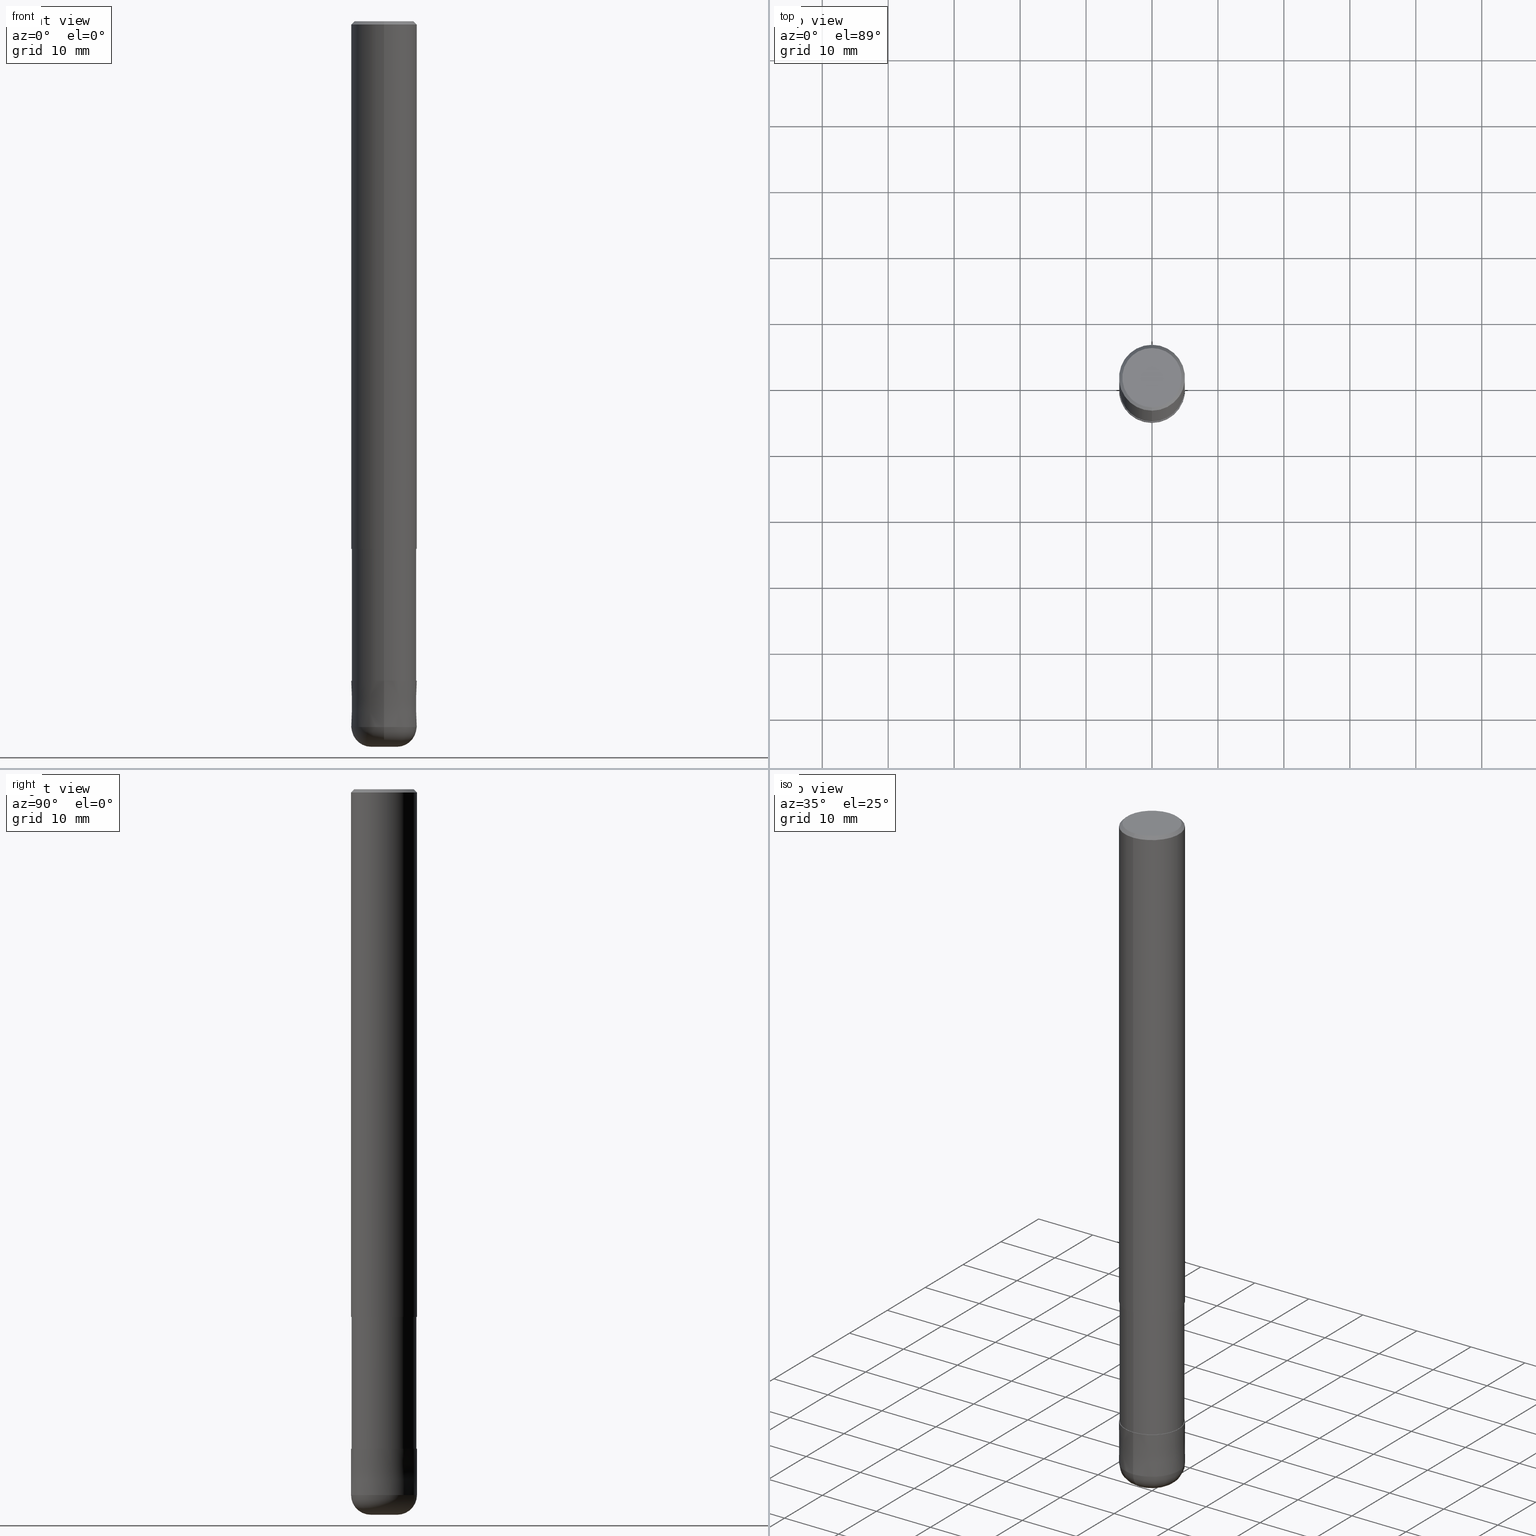
[diagram: canonical four-view strip — front | top / right | iso, engineering-drawing reading convention]
A machine part, canonical four-view strip (front | top / right | iso — engineering-drawing reading convention). The complete STEP part file that produces these views, byte-faithful:
ISO-10303-21;
HEADER;
FILE_DESCRIPTION(('no description'),'unknown implementation level');
FILE_NAME('HRRS4100-30-30-Huellk.stp','  ',('CIMSOURCE GmbH'),('CADClick - KiM GmbH - www.kimweb.de'),'unknown preprocess','ACIS','unknown authorization');
FILE_SCHEMA(('automotive_design'));
ENDSEC;
DATA;
#1=MECHANICAL_DESIGN_GEOMETRIC_PRESENTATION_REPRESENTATION(' ',(#14,#15,#16,#17,#18,#19,#20,#21,#22,#23,#24,#25,#26,#27,#28,#29,#30,#31,#32,#33,#34,#35,#36,#37,#38,#39,#40,#41,#42,#43,#44,#45,#46,#47,#48,#49,#50,#51,#52,#53,#54,#55,#56,#57,#58,#59,#60,#61,#62,#63,#64,#65,#66,#67,#68,#69,#70,#71,#72),#10);
#2=PRODUCT_DEFINITION_CONTEXT('',#73,'design');
#3=APPLICATION_PROTOCOL_DEFINITION('INTERNATIONAL STANDARD','automotive_design',1994,#73);
#4=PRODUCT_CATEGORY_RELATIONSHIP('NONE','NONE',#74,#75);
#5=SHAPE_DEFINITION_REPRESENTATION(#76,#77);
#6=PRODUCT_DEFINITION_CONTEXT('',#78,'design');
#7=APPLICATION_PROTOCOL_DEFINITION('INTERNATIONAL STANDARD','automotive_design',1994,#78);
#8=PRODUCT_CATEGORY_RELATIONSHIP('NONE','NONE',#79,#80);
#9=SHAPE_DEFINITION_REPRESENTATION(#81,#82);
#10= (GEOMETRIC_REPRESENTATION_CONTEXT(3)GLOBAL_UNCERTAINTY_ASSIGNED_CONTEXT((#85))GLOBAL_UNIT_ASSIGNED_CONTEXT((#87,#88,#89))REPRESENTATION_CONTEXT('NONE','WORKSPACE'));
#14=STYLED_ITEM('',(#91),#92);
#15=STYLED_ITEM('',(#93),#94);
#16=STYLED_ITEM('',(#95),#96);
#17=STYLED_ITEM('',(#97),#98);
#18=STYLED_ITEM('',(#99),#100);
#19=STYLED_ITEM('',(#101),#102);
#20=STYLED_ITEM('',(#103),#104);
#21=STYLED_ITEM('',(#105),#106);
#22=STYLED_ITEM('',(#107),#108);
#23=STYLED_ITEM('',(#109),#110);
#24=STYLED_ITEM('',(#111),#112);
#25=STYLED_ITEM('',(#113),#114);
#26=STYLED_ITEM('',(#115),#116);
#27=STYLED_ITEM('',(#117),#118);
#28=STYLED_ITEM('',(#119),#120);
#29=STYLED_ITEM('',(#121),#122);
#30=STYLED_ITEM('',(#123),#124);
#31=STYLED_ITEM('',(#125),#126);
#32=STYLED_ITEM('',(#127),#128);
#33=STYLED_ITEM('',(#129),#130);
#34=STYLED_ITEM('',(#131),#132);
#35=STYLED_ITEM('',(#133),#134);
#36=STYLED_ITEM('',(#135),#136);
#37=STYLED_ITEM('',(#137),#138);
#38=STYLED_ITEM('',(#139),#140);
#39=STYLED_ITEM('',(#141),#142);
#40=STYLED_ITEM('',(#143),#144);
#41=STYLED_ITEM('',(#145),#146);
#42=STYLED_ITEM('',(#147),#148);
#43=STYLED_ITEM('',(#149),#150);
#44=STYLED_ITEM('',(#151),#152);
#45=STYLED_ITEM('',(#153),#154);
#46=STYLED_ITEM('',(#155),#156);
#47=STYLED_ITEM('',(#157),#158);
#48=STYLED_ITEM('',(#159),#160);
#49=STYLED_ITEM('',(#161),#162);
#50=STYLED_ITEM('',(#163),#164);
#51=STYLED_ITEM('',(#165),#166);
#52=STYLED_ITEM('',(#167),#168);
#53=STYLED_ITEM('',(#169),#170);
#54=STYLED_ITEM('',(#171),#172);
#55=STYLED_ITEM('',(#173),#174);
#56=STYLED_ITEM('',(#175),#176);
#57=STYLED_ITEM('',(#177),#178);
#58=STYLED_ITEM('',(#179),#180);
#59=STYLED_ITEM('',(#181),#182);
#60=STYLED_ITEM('',(#183),#184);
#61=STYLED_ITEM('',(#185),#186);
#62=STYLED_ITEM('',(#187),#188);
#63=STYLED_ITEM('',(#189),#190);
#64=STYLED_ITEM('',(#191),#192);
#65=STYLED_ITEM('',(#193),#194);
#66=STYLED_ITEM('',(#195),#196);
#67=STYLED_ITEM('',(#197),#198);
#68=STYLED_ITEM('',(#199),#200);
#69=STYLED_ITEM('',(#201),#202);
#70=STYLED_ITEM('',(#203),#204);
#71=STYLED_ITEM('',(#205),#206);
#72=STYLED_ITEM('',(#207),#208);
#73=APPLICATION_CONTEXT(' ');
#74=PRODUCT_CATEGORY('part','NONE');
#75=PRODUCT_RELATED_PRODUCT_CATEGORY('detail',' ',(#209));
#76=PRODUCT_DEFINITION_SHAPE('NONE','NONE',#210);
#77=ADVANCED_BREP_SHAPE_REPRESENTATION('1',(#102,#211),#10);
#78=APPLICATION_CONTEXT(' ');
#79=PRODUCT_CATEGORY('part','NONE');
#80=PRODUCT_RELATED_PRODUCT_CATEGORY('detail',' ',(#212));
#81=PRODUCT_DEFINITION_SHAPE('NONE','NONE',#213);
#82=ADVANCED_BREP_SHAPE_REPRESENTATION('2',(#108,#214),#10);
#85=UNCERTAINTY_MEASURE_WITH_UNIT(LENGTH_MEASURE(1.0E-006),#87,'','');
#87= (CONVERSION_BASED_UNIT('MILLIMETRE',#217)LENGTH_UNIT()NAMED_UNIT(#220));
#88= (NAMED_UNIT(#222)PLANE_ANGLE_UNIT()SI_UNIT($,.RADIAN.));
#89= (NAMED_UNIT(#222)SOLID_ANGLE_UNIT()SI_UNIT($,.STERADIAN.));
#91=PRESENTATION_STYLE_ASSIGNMENT((#228));
#92=EDGE_CURVE('',#130,#112,#229,.T.);
#93=PRESENTATION_STYLE_ASSIGNMENT((#230));
#94=EDGE_CURVE('',#200,#112,#231,.T.);
#95=PRESENTATION_STYLE_ASSIGNMENT((#232));
#96=ADVANCED_FACE('',(#233),#234,.T.);
#97=PRESENTATION_STYLE_ASSIGNMENT((#235));
#98=VERTEX_POINT('',#236);
#99=PRESENTATION_STYLE_ASSIGNMENT((#237));
#100=EDGE_CURVE('',#98,#118,#238,.T.);
#101=PRESENTATION_STYLE_ASSIGNMENT((#239));
#102=MANIFOLD_SOLID_BREP('1',#240);
#103=PRESENTATION_STYLE_ASSIGNMENT((#241));
#104=VERTEX_POINT('',#242);
#105=PRESENTATION_STYLE_ASSIGNMENT((#243));
#106=VERTEX_POINT('',#244);
#107=PRESENTATION_STYLE_ASSIGNMENT((#245));
#108=MANIFOLD_SOLID_BREP('2',#246);
#109=PRESENTATION_STYLE_ASSIGNMENT((#247));
#110=EDGE_CURVE('',#200,#98,#248,.T.);
#111=PRESENTATION_STYLE_ASSIGNMENT((#249));
#112=VERTEX_POINT('',#250);
#113=PRESENTATION_STYLE_ASSIGNMENT((#251));
#114=ADVANCED_FACE('',(#252),#253,.T.);
#115=PRESENTATION_STYLE_ASSIGNMENT((#254));
#116=VERTEX_POINT('',#255);
#117=PRESENTATION_STYLE_ASSIGNMENT((#256));
#118=VERTEX_POINT('',#257);
#119=PRESENTATION_STYLE_ASSIGNMENT((#258));
#120=VERTEX_POINT('',#259);
#121=PRESENTATION_STYLE_ASSIGNMENT((#260));
#122=EDGE_CURVE('',#98,#130,#261,.T.);
#123=PRESENTATION_STYLE_ASSIGNMENT((#262));
#124=ADVANCED_FACE('',(#263),#264,.T.);
#125=PRESENTATION_STYLE_ASSIGNMENT((#265));
#126=VERTEX_POINT('',#266);
#127=PRESENTATION_STYLE_ASSIGNMENT((#267));
#128=EDGE_CURVE('',#104,#192,#268,.T.);
#129=PRESENTATION_STYLE_ASSIGNMENT((#269));
#130=VERTEX_POINT('',#270);
#131=PRESENTATION_STYLE_ASSIGNMENT((#271));
#132=ADVANCED_FACE('',(#272),#273,.T.);
#133=PRESENTATION_STYLE_ASSIGNMENT((#274));
#134=EDGE_CURVE('',#188,#130,#275,.T.);
#135=PRESENTATION_STYLE_ASSIGNMENT((#276));
#136=ADVANCED_FACE('',(#277),#278,.T.);
#137=PRESENTATION_STYLE_ASSIGNMENT((#279));
#138=EDGE_CURVE('',#104,#158,#280,.T.);
#139=PRESENTATION_STYLE_ASSIGNMENT((#281));
#140=EDGE_CURVE('',#162,#116,#282,.T.);
#141=PRESENTATION_STYLE_ASSIGNMENT((#283));
#142=ADVANCED_FACE('',(#284),#285,.T.);
#143=PRESENTATION_STYLE_ASSIGNMENT((#286));
#144=EDGE_CURVE('',#130,#98,#287,.T.);
#145=PRESENTATION_STYLE_ASSIGNMENT((#288));
#146=EDGE_CURVE('',#120,#126,#289,.T.);
#147=PRESENTATION_STYLE_ASSIGNMENT((#290));
#148=EDGE_CURVE('',#162,#126,#291,.T.);
#149=PRESENTATION_STYLE_ASSIGNMENT((#292));
#150=EDGE_CURVE('',#118,#188,#293,.T.);
#151=PRESENTATION_STYLE_ASSIGNMENT((#294));
#152=VERTEX_POINT('',#295);
#153=PRESENTATION_STYLE_ASSIGNMENT((#296));
#154=EDGE_CURVE('',#156,#158,#297,.T.);
#155=PRESENTATION_STYLE_ASSIGNMENT((#298));
#156=VERTEX_POINT('',#299);
#157=PRESENTATION_STYLE_ASSIGNMENT((#300));
#158=VERTEX_POINT('',#301);
#159=PRESENTATION_STYLE_ASSIGNMENT((#302));
#160=ADVANCED_FACE('',(#303),#304,.T.);
#161=PRESENTATION_STYLE_ASSIGNMENT((#305));
#162=VERTEX_POINT('',#306);
#163=PRESENTATION_STYLE_ASSIGNMENT((#307));
#164=EDGE_CURVE('',#116,#120,#308,.T.);
#165=PRESENTATION_STYLE_ASSIGNMENT((#309));
#166=EDGE_CURVE('',#112,#200,#310,.T.);
#167=PRESENTATION_STYLE_ASSIGNMENT((#311));
#168=EDGE_CURVE('',#192,#156,#312,.T.);
#169=PRESENTATION_STYLE_ASSIGNMENT((#313));
#170=ADVANCED_FACE('',(#314),#315,.T.);
#171=PRESENTATION_STYLE_ASSIGNMENT((#316));
#172=ADVANCED_FACE('',(#317),#318,.T.);
#173=PRESENTATION_STYLE_ASSIGNMENT((#319));
#174=EDGE_CURVE('',#120,#106,#320,.T.);
#175=PRESENTATION_STYLE_ASSIGNMENT((#321));
#176=ADVANCED_FACE('',(#322),#323,.T.);
#177=PRESENTATION_STYLE_ASSIGNMENT((#324));
#178=ADVANCED_FACE('',(#325,#326),#327,.T.);
#179=PRESENTATION_STYLE_ASSIGNMENT((#328));
#180=EDGE_CURVE('',#126,#162,#329,.T.);
#181=PRESENTATION_STYLE_ASSIGNMENT((#330));
#182=ADVANCED_FACE('',(#331),#332,.T.);
#183=PRESENTATION_STYLE_ASSIGNMENT((#333));
#184=EDGE_CURVE('',#158,#104,#334,.T.);
#185=PRESENTATION_STYLE_ASSIGNMENT((#335));
#186=EDGE_CURVE('',#152,#116,#336,.T.);
#187=PRESENTATION_STYLE_ASSIGNMENT((#337));
#188=VERTEX_POINT('',#338);
#189=PRESENTATION_STYLE_ASSIGNMENT((#339));
#190=EDGE_CURVE('',#106,#152,#340,.T.);
#191=PRESENTATION_STYLE_ASSIGNMENT((#341));
#192=VERTEX_POINT('',#342);
#193=PRESENTATION_STYLE_ASSIGNMENT((#343));
#194=EDGE_CURVE('',#156,#192,#344,.T.);
#195=PRESENTATION_STYLE_ASSIGNMENT((#345));
#196=ADVANCED_FACE('',(#346),#347,.T.);
#197=PRESENTATION_STYLE_ASSIGNMENT((#348));
#198=EDGE_CURVE('',#152,#106,#349,.T.);
#199=PRESENTATION_STYLE_ASSIGNMENT((#350));
#200=VERTEX_POINT('',#351);
#201=PRESENTATION_STYLE_ASSIGNMENT((#352));
#202=EDGE_CURVE('',#120,#116,#353,.T.);
#203=PRESENTATION_STYLE_ASSIGNMENT((#354));
#204=EDGE_CURVE('',#188,#118,#355,.T.);
#205=PRESENTATION_STYLE_ASSIGNMENT((#356));
#206=ADVANCED_FACE('',(#357),#358,.T.);
#207=PRESENTATION_STYLE_ASSIGNMENT((#359));
#208=ADVANCED_FACE('',(#360),#361,.T.);
#209=PRODUCT('1','1','PART-1-DESC',(#362));
#210=PRODUCT_DEFINITION('NONE','NONE',#363,#2);
#211=AXIS2_PLACEMENT_3D('',#364,#365,#366);
#212=PRODUCT('2','2','PART-2-DESC',(#367));
#213=PRODUCT_DEFINITION('NONE','NONE',#368,#6);
#214=AXIS2_PLACEMENT_3D('',#369,#370,#371);
#217=LENGTH_MEASURE_WITH_UNIT(LENGTH_MEASURE(1.0),#372);
#220=DIMENSIONAL_EXPONENTS(1.0,0.0,0.0,0.0,0.0,0.0,0.0);
#222=DIMENSIONAL_EXPONENTS(0.0,0.0,0.0,0.0,0.0,0.0,0.0);
#228=CURVE_STYLE('',#373,POSITIVE_LENGTH_MEASURE(1.0E-006),#374);
#229=LINE('',#375,#376);
#230=CURVE_STYLE('',#377,POSITIVE_LENGTH_MEASURE(1.0E-006),#378);
#231=CIRCLE('',#379,5.0);
#232=SURFACE_STYLE_USAGE(.BOTH.,#380);
#233=FACE_OUTER_BOUND('',#381,.T.);
#234=CYLINDRICAL_SURFACE('',#382,5.0);
#235=POINT_STYLE(' ',#383,POSITIVE_LENGTH_MEASURE(1.0E-006),#384);
#236=CARTESIAN_POINT('',(6.12303176911189E-016,-5.0,-0.5));
#237=CURVE_STYLE('',#385,POSITIVE_LENGTH_MEASURE(1.0E-006),#386);
#238=LINE('',#387,#388);
#239=SURFACE_STYLE_USAGE(.BOTH.,#389);
#240=CLOSED_SHELL('',(#208,#96,#114,#178,#170,#124,#172,#182,#136));
#241=POINT_STYLE(' ',#390,POSITIVE_LENGTH_MEASURE(1.0E-006),#391);
#242=CARTESIAN_POINT('',(6.01275596695018E-016,-4.90995,-100.0));
#243=POINT_STYLE(' ',#392,POSITIVE_LENGTH_MEASURE(1.0E-006),#393);
#244=CARTESIAN_POINT('',(6.1229093084765E-016,-4.9999,-100.0));
#245=SURFACE_STYLE_USAGE(.BOTH.,#394);
#246=CLOSED_SHELL('',(#132,#196,#160,#142,#176,#206));
#247=CURVE_STYLE('',#395,POSITIVE_LENGTH_MEASURE(1.0E-006),#396);
#248=LINE('',#397,#398);
#249=POINT_STYLE(' ',#399,POSITIVE_LENGTH_MEASURE(1.0E-006),#400);
#250=CARTESIAN_POINT('',(0.0,5.0,-80.0));
#251=SURFACE_STYLE_USAGE(.BOTH.,#401);
#252=FACE_OUTER_BOUND('',#402,.T.);
#253=CONICAL_SURFACE('',#403,4.75,0.785398163397448);
#254=POINT_STYLE(' ',#404,POSITIVE_LENGTH_MEASURE(1.0E-006),#405);
#255=CARTESIAN_POINT('',(0.0,5.0,-107.0));
#256=POINT_STYLE(' ',#406,POSITIVE_LENGTH_MEASURE(1.0E-006),#407);
#257=CARTESIAN_POINT('',(5.5107285922007E-016,-4.5,0.0));
#258=POINT_STYLE(' ',#408,POSITIVE_LENGTH_MEASURE(1.0E-006),#409);
#259=CARTESIAN_POINT('',(6.12303176911189E-016,-5.0,-107.0));
#260=CURVE_STYLE('',#410,POSITIVE_LENGTH_MEASURE(1.0E-006),#411);
#261=CIRCLE('',#412,5.0);
#262=SURFACE_STYLE_USAGE(.BOTH.,#413);
#263=FACE_OUTER_BOUND('',#414,.T.);
#264=CONICAL_SURFACE('',#415,4.75,0.785398163397448);
#265=POINT_STYLE(' ',#416,POSITIVE_LENGTH_MEASURE(1.0E-006),#417);
#266=CARTESIAN_POINT('',(2.44921270764476E-016,-2.0,-110.0));
#267=CURVE_STYLE('',#418,POSITIVE_LENGTH_MEASURE(1.0E-006),#419);
#268=LINE('',#420,#421);
#269=POINT_STYLE(' ',#422,POSITIVE_LENGTH_MEASURE(1.0E-006),#423);
#270=CARTESIAN_POINT('',(0.0,5.0,-0.5));
#271=SURFACE_STYLE_USAGE(.BOTH.,#424);
#272=FACE_OUTER_BOUND('',#425,.T.);
#273=TOROIDAL_SURFACE('',#426,2.0,3.0);
#274=CURVE_STYLE('',#427,POSITIVE_LENGTH_MEASURE(1.0E-006),#428);
#275=LINE('',#429,#430);
#276=SURFACE_STYLE_USAGE(.BOTH.,#431);
#277=FACE_OUTER_BOUND('',#432,.T.);
#278=PLANE('',#433);
#279=CURVE_STYLE('',#434,POSITIVE_LENGTH_MEASURE(1.0E-006),#435);
#280=CIRCLE('',#436,4.90995);
#281=CURVE_STYLE('',#437,POSITIVE_LENGTH_MEASURE(1.0E-006),#438);
#282=CIRCLE('',#439,3.0);
#283=SURFACE_STYLE_USAGE(.BOTH.,#440);
#284=FACE_OUTER_BOUND('',#441,.T.);
#285=CONICAL_SURFACE('',#442,4.99995,1.42857142847092E-005);
#286=CURVE_STYLE('',#443,POSITIVE_LENGTH_MEASURE(1.0E-006),#444);
#287=CIRCLE('',#445,5.0);
#288=CURVE_STYLE('',#446,POSITIVE_LENGTH_MEASURE(1.0E-006),#447);
#289=CIRCLE('',#448,3.0);
#290=CURVE_STYLE('',#449,POSITIVE_LENGTH_MEASURE(1.0E-006),#450);
#291=CIRCLE('',#451,2.0);
#292=CURVE_STYLE('',#452,POSITIVE_LENGTH_MEASURE(1.0E-006),#453);
#293=CIRCLE('',#454,4.5);
#294=POINT_STYLE(' ',#455,POSITIVE_LENGTH_MEASURE(1.0E-006),#456);
#295=CARTESIAN_POINT('',(0.0,4.9999,-100.0));
#296=CURVE_STYLE('',#457,POSITIVE_LENGTH_MEASURE(1.0E-006),#458);
#297=LINE('',#459,#460);
#298=POINT_STYLE(' ',#461,POSITIVE_LENGTH_MEASURE(1.0E-006),#462);
#299=CARTESIAN_POINT('',(0.0,4.90995,-80.0));
#300=POINT_STYLE(' ',#463,POSITIVE_LENGTH_MEASURE(1.0E-006),#464);
#301=CARTESIAN_POINT('',(0.0,4.90995,-100.0));
#302=SURFACE_STYLE_USAGE(.BOTH.,#465);
#303=FACE_OUTER_BOUND('',#466,.T.);
#304=PLANE('',#467);
#305=POINT_STYLE(' ',#468,POSITIVE_LENGTH_MEASURE(1.0E-006),#469);
#306=CARTESIAN_POINT('',(0.0,2.0,-110.0));
#307=CURVE_STYLE('',#470,POSITIVE_LENGTH_MEASURE(1.0E-006),#471);
#308=CIRCLE('',#472,5.0);
#309=CURVE_STYLE('',#473,POSITIVE_LENGTH_MEASURE(1.0E-006),#474);
#310=CIRCLE('',#475,5.0);
#311=CURVE_STYLE('',#476,POSITIVE_LENGTH_MEASURE(1.0E-006),#477);
#312=CIRCLE('',#478,4.90995);
#313=SURFACE_STYLE_USAGE(.BOTH.,#479);
#314=FACE_OUTER_BOUND('',#480,.T.);
#315=PLANE('',#481);
#316=SURFACE_STYLE_USAGE(.BOTH.,#482);
#317=FACE_OUTER_BOUND('',#483,.T.);
#318=CYLINDRICAL_SURFACE('',#484,5.0);
#319=CURVE_STYLE('',#485,POSITIVE_LENGTH_MEASURE(1.0E-006),#486);
#320=LINE('',#487,#488);
#321=SURFACE_STYLE_USAGE(.BOTH.,#489);
#322=FACE_OUTER_BOUND('',#490,.T.);
#323=TOROIDAL_SURFACE('',#491,2.0,3.0);
#324=SURFACE_STYLE_USAGE(.BOTH.,#492);
#325=FACE_OUTER_BOUND('',#493,.T.);
#326=FACE_BOUND('',#494,.T.);
#327=PLANE('',#495);
#328=CURVE_STYLE('',#496,POSITIVE_LENGTH_MEASURE(1.0E-006),#497);
#329=CIRCLE('',#498,2.0);
#330=SURFACE_STYLE_USAGE(.BOTH.,#499);
#331=FACE_OUTER_BOUND('',#500,.T.);
#332=CYLINDRICAL_SURFACE('',#501,4.90995);
#333=CURVE_STYLE('',#502,POSITIVE_LENGTH_MEASURE(1.0E-006),#503);
#334=CIRCLE('',#504,4.90995);
#335=CURVE_STYLE('',#505,POSITIVE_LENGTH_MEASURE(1.0E-006),#506);
#336=LINE('',#507,#508);
#337=POINT_STYLE(' ',#509,POSITIVE_LENGTH_MEASURE(1.0E-006),#510);
#338=CARTESIAN_POINT('',(0.0,4.5,0.0));
#339=CURVE_STYLE('',#511,POSITIVE_LENGTH_MEASURE(1.0E-006),#512);
#340=CIRCLE('',#513,4.9999);
#341=POINT_STYLE(' ',#514,POSITIVE_LENGTH_MEASURE(1.0E-006),#515);
#342=CARTESIAN_POINT('',(6.01275596695018E-016,-4.90995,-80.0));
#343=CURVE_STYLE('',#516,POSITIVE_LENGTH_MEASURE(1.0E-006),#517);
#344=CIRCLE('',#518,4.90995);
#345=SURFACE_STYLE_USAGE(.BOTH.,#519);
#346=FACE_OUTER_BOUND('',#520,.T.);
#347=CONICAL_SURFACE('',#521,4.99995,1.42857142847092E-005);
#348=CURVE_STYLE('',#522,POSITIVE_LENGTH_MEASURE(1.0E-006),#523);
#349=CIRCLE('',#524,4.9999);
#350=POINT_STYLE(' ',#525,POSITIVE_LENGTH_MEASURE(1.0E-006),#526);
#351=CARTESIAN_POINT('',(6.12303176911189E-016,-5.0,-80.0));
#352=CURVE_STYLE('',#527,POSITIVE_LENGTH_MEASURE(1.0E-006),#528);
#353=CIRCLE('',#529,5.0);
#354=CURVE_STYLE('',#530,POSITIVE_LENGTH_MEASURE(1.0E-006),#531);
#355=CIRCLE('',#532,4.5);
#356=SURFACE_STYLE_USAGE(.BOTH.,#533);
#357=FACE_OUTER_BOUND('',#534,.T.);
#358=PLANE('',#535);
#359=SURFACE_STYLE_USAGE(.BOTH.,#536);
#360=FACE_OUTER_BOUND('',#537,.T.);
#361=CYLINDRICAL_SURFACE('',#538,4.90995);
#362=PRODUCT_CONTEXT('',#73,'mechanical');
#363=PRODUCT_DEFINITION_FORMATION_WITH_SPECIFIED_SOURCE(' ','NONE',#209,.NOT_KNOWN.);
#364=CARTESIAN_POINT('',(0.0,0.0,0.0));
#365=DIRECTION('',(0.0,0.0,1.0));
#366=DIRECTION('',(1.0,0.0,0.0));
#367=PRODUCT_CONTEXT('',#78,'mechanical');
#368=PRODUCT_DEFINITION_FORMATION_WITH_SPECIFIED_SOURCE(' ','NONE',#212,.NOT_KNOWN.);
#369=CARTESIAN_POINT('',(0.0,0.0,0.0));
#370=DIRECTION('',(0.0,0.0,1.0));
#371=DIRECTION('',(1.0,0.0,0.0));
#372= (NAMED_UNIT(#220)LENGTH_UNIT()SI_UNIT(.MILLI.,.METRE.));
#373=DRAUGHTING_PRE_DEFINED_CURVE_FONT('continuous');
#374=COLOUR_RGB('',0.498039215803146,0.498039215803146,0.498039215803146);
#375=CARTESIAN_POINT('',(-6.12303176911189E-016,5.0,-40.25));
#376=VECTOR('',#540,1.0);
#377=DRAUGHTING_PRE_DEFINED_CURVE_FONT('continuous');
#378=COLOUR_RGB('',0.498039215803146,0.498039215803146,0.498039215803146);
#379=AXIS2_PLACEMENT_3D('',#541,#542,#543);
#380=SURFACE_SIDE_STYLE('',(#544));
#381=EDGE_LOOP('',(#545,#546,#547,#548));
#382=AXIS2_PLACEMENT_3D('',#549,#550,#551);
#383=PRE_DEFINED_MARKER('');
#384=COLOUR_RGB('',0.498039215803146,0.498039215803146,0.498039215803146);
#385=DRAUGHTING_PRE_DEFINED_CURVE_FONT('continuous');
#386=COLOUR_RGB('',0.498039215803146,0.498039215803146,0.498039215803146);
#387=CARTESIAN_POINT('',(5.81688018065629E-016,-4.75,-0.25));
#388=VECTOR('',#552,1.0);
#389=SURFACE_SIDE_STYLE('',(#553));
#390=PRE_DEFINED_MARKER('');
#391=COLOUR_RGB('',0.498039215803146,0.498039215803146,0.498039215803146);
#392=PRE_DEFINED_MARKER('');
#393=COLOUR_RGB('',0.800000011920929,0.800000011920929,0.800000011920929);
#394=SURFACE_SIDE_STYLE('',(#554));
#395=DRAUGHTING_PRE_DEFINED_CURVE_FONT('continuous');
#396=COLOUR_RGB('',0.498039215803146,0.498039215803146,0.498039215803146);
#397=CARTESIAN_POINT('',(6.12303176911189E-016,-5.0,-40.25));
#398=VECTOR('',#555,1.0);
#399=PRE_DEFINED_MARKER('');
#400=COLOUR_RGB('',0.498039215803146,0.498039215803146,0.498039215803146);
#401=SURFACE_SIDE_STYLE('',(#556));
#402=EDGE_LOOP('',(#557,#558,#559,#560));
#403=AXIS2_PLACEMENT_3D('',#561,#562,#563);
#404=PRE_DEFINED_MARKER('');
#405=COLOUR_RGB('',0.800000011920929,0.800000011920929,0.800000011920929);
#406=PRE_DEFINED_MARKER('');
#407=COLOUR_RGB('',0.498039215803146,0.498039215803146,0.498039215803146);
#408=PRE_DEFINED_MARKER('');
#409=COLOUR_RGB('',0.800000011920929,0.800000011920929,0.800000011920929);
#410=DRAUGHTING_PRE_DEFINED_CURVE_FONT('continuous');
#411=COLOUR_RGB('',0.498039215803146,0.498039215803146,0.498039215803146);
#412=AXIS2_PLACEMENT_3D('',#564,#565,#566);
#413=SURFACE_SIDE_STYLE('',(#567));
#414=EDGE_LOOP('',(#568,#569,#570,#571));
#415=AXIS2_PLACEMENT_3D('',#572,#573,#574);
#416=PRE_DEFINED_MARKER('');
#417=COLOUR_RGB('',0.800000011920929,0.800000011920929,0.800000011920929);
#418=DRAUGHTING_PRE_DEFINED_CURVE_FONT('continuous');
#419=COLOUR_RGB('',0.498039215803146,0.498039215803146,0.498039215803146);
#420=CARTESIAN_POINT('',(6.01275596695018E-016,-4.90995,-90.0));
#421=VECTOR('',#575,1.0);
#422=PRE_DEFINED_MARKER('');
#423=COLOUR_RGB('',0.498039215803146,0.498039215803146,0.498039215803146);
#424=SURFACE_SIDE_STYLE('',(#576));
#425=EDGE_LOOP('',(#577,#578,#579,#580));
#426=AXIS2_PLACEMENT_3D('',#581,#582,#583);
#427=DRAUGHTING_PRE_DEFINED_CURVE_FONT('continuous');
#428=COLOUR_RGB('',0.498039215803146,0.498039215803146,0.498039215803146);
#429=CARTESIAN_POINT('',(-5.81688018065629E-016,4.75,-0.25));
#430=VECTOR('',#584,1.0);
#431=SURFACE_SIDE_STYLE('',(#585));
#432=EDGE_LOOP('',(#586,#587));
#433=AXIS2_PLACEMENT_3D('',#588,#589,#590);
#434=DRAUGHTING_PRE_DEFINED_CURVE_FONT('continuous');
#435=COLOUR_RGB('',0.498039215803146,0.498039215803146,0.498039215803146);
#436=AXIS2_PLACEMENT_3D('',#591,#592,#593);
#437=DRAUGHTING_PRE_DEFINED_CURVE_FONT('continuous');
#438=COLOUR_RGB('',0.800000011920929,0.800000011920929,0.800000011920929);
#439=AXIS2_PLACEMENT_3D('',#594,#595,#596);
#440=SURFACE_SIDE_STYLE('',(#597));
#441=EDGE_LOOP('',(#598,#599,#600,#601));
#442=AXIS2_PLACEMENT_3D('',#602,#603,#604);
#443=DRAUGHTING_PRE_DEFINED_CURVE_FONT('continuous');
#444=COLOUR_RGB('',0.498039215803146,0.498039215803146,0.498039215803146);
#445=AXIS2_PLACEMENT_3D('',#605,#606,#607);
#446=DRAUGHTING_PRE_DEFINED_CURVE_FONT('continuous');
#447=COLOUR_RGB('',0.800000011920929,0.800000011920929,0.800000011920929);
#448=AXIS2_PLACEMENT_3D('',#608,#609,#610);
#449=DRAUGHTING_PRE_DEFINED_CURVE_FONT('continuous');
#450=COLOUR_RGB('',0.800000011920929,0.800000011920929,0.800000011920929);
#451=AXIS2_PLACEMENT_3D('',#611,#612,#613);
#452=DRAUGHTING_PRE_DEFINED_CURVE_FONT('continuous');
#453=COLOUR_RGB('',0.498039215803146,0.498039215803146,0.498039215803146);
#454=AXIS2_PLACEMENT_3D('',#614,#615,#616);
#455=PRE_DEFINED_MARKER('');
#456=COLOUR_RGB('',0.800000011920929,0.800000011920929,0.800000011920929);
#457=DRAUGHTING_PRE_DEFINED_CURVE_FONT('continuous');
#458=COLOUR_RGB('',0.498039215803146,0.498039215803146,0.498039215803146);
#459=CARTESIAN_POINT('',(-6.01275596695018E-016,4.90995,-90.0));
#460=VECTOR('',#617,1.0);
#461=PRE_DEFINED_MARKER('');
#462=COLOUR_RGB('',0.498039215803146,0.498039215803146,0.498039215803146);
#463=PRE_DEFINED_MARKER('');
#464=COLOUR_RGB('',0.498039215803146,0.498039215803146,0.498039215803146);
#465=SURFACE_SIDE_STYLE('',(#618));
#466=EDGE_LOOP('',(#619,#620));
#467=AXIS2_PLACEMENT_3D('',#621,#622,#623);
#468=PRE_DEFINED_MARKER('');
#469=COLOUR_RGB('',0.800000011920929,0.800000011920929,0.800000011920929);
#470=DRAUGHTING_PRE_DEFINED_CURVE_FONT('continuous');
#471=COLOUR_RGB('',0.800000011920929,0.800000011920929,0.800000011920929);
#472=AXIS2_PLACEMENT_3D('',#624,#625,#626);
#473=DRAUGHTING_PRE_DEFINED_CURVE_FONT('continuous');
#474=COLOUR_RGB('',0.498039215803146,0.498039215803146,0.498039215803146);
#475=AXIS2_PLACEMENT_3D('',#627,#628,#629);
#476=DRAUGHTING_PRE_DEFINED_CURVE_FONT('continuous');
#477=COLOUR_RGB('',0.498039215803146,0.498039215803146,0.498039215803146);
#478=AXIS2_PLACEMENT_3D('',#630,#631,#632);
#479=SURFACE_SIDE_STYLE('',(#633));
#480=EDGE_LOOP('',(#634,#635));
#481=AXIS2_PLACEMENT_3D('',#636,#637,#638);
#482=SURFACE_SIDE_STYLE('',(#639));
#483=EDGE_LOOP('',(#640,#641,#642,#643));
#484=AXIS2_PLACEMENT_3D('',#644,#645,#646);
#485=DRAUGHTING_PRE_DEFINED_CURVE_FONT('continuous');
#486=COLOUR_RGB('',0.800000011920929,0.800000011920929,0.800000011920929);
#487=CARTESIAN_POINT('',(6.12297053879419E-016,-4.99995,-103.5));
#488=VECTOR('',#647,1.0);
#489=SURFACE_SIDE_STYLE('',(#648));
#490=EDGE_LOOP('',(#649,#650,#651,#652));
#491=AXIS2_PLACEMENT_3D('',#653,#654,#655);
#492=SURFACE_SIDE_STYLE('',(#656));
#493=EDGE_LOOP('',(#657,#658));
#494=EDGE_LOOP('',(#659,#660));
#495=AXIS2_PLACEMENT_3D('',#661,#662,#663);
#496=DRAUGHTING_PRE_DEFINED_CURVE_FONT('continuous');
#497=COLOUR_RGB('',0.800000011920929,0.800000011920929,0.800000011920929);
#498=AXIS2_PLACEMENT_3D('',#664,#665,#666);
#499=SURFACE_SIDE_STYLE('',(#667));
#500=EDGE_LOOP('',(#668,#669,#670,#671));
#501=AXIS2_PLACEMENT_3D('',#672,#673,#674);
#502=DRAUGHTING_PRE_DEFINED_CURVE_FONT('continuous');
#503=COLOUR_RGB('',0.498039215803146,0.498039215803146,0.498039215803146);
#504=AXIS2_PLACEMENT_3D('',#675,#676,#677);
#505=DRAUGHTING_PRE_DEFINED_CURVE_FONT('continuous');
#506=COLOUR_RGB('',0.800000011920929,0.800000011920929,0.800000011920929);
#507=CARTESIAN_POINT('',(-6.1229705387942E-016,4.99995,-103.5));
#508=VECTOR('',#678,1.0);
#509=PRE_DEFINED_MARKER('');
#510=COLOUR_RGB('',0.498039215803146,0.498039215803146,0.498039215803146);
#511=DRAUGHTING_PRE_DEFINED_CURVE_FONT('continuous');
#512=COLOUR_RGB('',0.800000011920929,0.800000011920929,0.800000011920929);
#513=AXIS2_PLACEMENT_3D('',#679,#680,#681);
#514=PRE_DEFINED_MARKER('');
#515=COLOUR_RGB('',0.498039215803146,0.498039215803146,0.498039215803146);
#516=DRAUGHTING_PRE_DEFINED_CURVE_FONT('continuous');
#517=COLOUR_RGB('',0.498039215803146,0.498039215803146,0.498039215803146);
#518=AXIS2_PLACEMENT_3D('',#682,#683,#684);
#519=SURFACE_SIDE_STYLE('',(#685));
#520=EDGE_LOOP('',(#686,#687,#688,#689));
#521=AXIS2_PLACEMENT_3D('',#690,#691,#692);
#522=DRAUGHTING_PRE_DEFINED_CURVE_FONT('continuous');
#523=COLOUR_RGB('',0.800000011920929,0.800000011920929,0.800000011920929);
#524=AXIS2_PLACEMENT_3D('',#693,#694,#695);
#525=PRE_DEFINED_MARKER('');
#526=COLOUR_RGB('',0.498039215803146,0.498039215803146,0.498039215803146);
#527=DRAUGHTING_PRE_DEFINED_CURVE_FONT('continuous');
#528=COLOUR_RGB('',0.800000011920929,0.800000011920929,0.800000011920929);
#529=AXIS2_PLACEMENT_3D('',#696,#697,#698);
#530=DRAUGHTING_PRE_DEFINED_CURVE_FONT('continuous');
#531=COLOUR_RGB('',0.498039215803146,0.498039215803146,0.498039215803146);
#532=AXIS2_PLACEMENT_3D('',#699,#700,#701);
#533=SURFACE_SIDE_STYLE('',(#702));
#534=EDGE_LOOP('',(#703,#704));
#535=AXIS2_PLACEMENT_3D('',#705,#706,#707);
#536=SURFACE_SIDE_STYLE('',(#708));
#537=EDGE_LOOP('',(#709,#710,#711,#712));
#538=AXIS2_PLACEMENT_3D('',#713,#714,#715);
#540=DIRECTION('',(0.0,0.0,-1.0));
#541=CARTESIAN_POINT('',(0.0,0.0,-80.0));
#542=DIRECTION('',(0.0,0.0,-1.0));
#543=DIRECTION('',(0.0,1.0,0.0));
#544=SURFACE_STYLE_FILL_AREA(#716);
#545=ORIENTED_EDGE('',*,*,#92,.F.);
#546=ORIENTED_EDGE('',*,*,#144,.T.);
#547=ORIENTED_EDGE('',*,*,#110,.F.);
#548=ORIENTED_EDGE('',*,*,#166,.F.);
#549=CARTESIAN_POINT('',(0.0,0.0,-40.25));
#550=DIRECTION('',(-0.0,-0.0,1.0));
#551=DIRECTION('',(0.0,1.0,0.0));
#552=DIRECTION('',(-8.65927457071936E-017,0.707106781186548,0.707106781186548));
#553=SURFACE_STYLE_FILL_AREA(#717);
#554=SURFACE_STYLE_FILL_AREA(#718);
#555=DIRECTION('',(-0.0,-0.0,1.0));
#556=SURFACE_STYLE_FILL_AREA(#719);
#557=ORIENTED_EDGE('',*,*,#134,.F.);
#558=ORIENTED_EDGE('',*,*,#204,.T.);
#559=ORIENTED_EDGE('',*,*,#100,.F.);
#560=ORIENTED_EDGE('',*,*,#144,.F.);
#561=CARTESIAN_POINT('',(0.0,0.0,-0.25));
#562=DIRECTION('',(0.0,-0.0,-1.0));
#563=DIRECTION('',(0.0,1.0,0.0));
#564=CARTESIAN_POINT('',(0.0,0.0,-0.5));
#565=DIRECTION('',(0.0,0.0,-1.0));
#566=DIRECTION('',(0.0,1.0,0.0));
#567=SURFACE_STYLE_FILL_AREA(#720);
#568=ORIENTED_EDGE('',*,*,#134,.T.);
#569=ORIENTED_EDGE('',*,*,#122,.F.);
#570=ORIENTED_EDGE('',*,*,#100,.T.);
#571=ORIENTED_EDGE('',*,*,#150,.T.);
#572=CARTESIAN_POINT('',(0.0,0.0,-0.25));
#573=DIRECTION('',(0.0,-0.0,-1.0));
#574=DIRECTION('',(0.0,1.0,0.0));
#575=DIRECTION('',(-0.0,-0.0,1.0));
#576=SURFACE_STYLE_FILL_AREA(#721);
#577=ORIENTED_EDGE('',*,*,#146,.F.);
#578=ORIENTED_EDGE('',*,*,#202,.T.);
#579=ORIENTED_EDGE('',*,*,#140,.F.);
#580=ORIENTED_EDGE('',*,*,#180,.F.);
#581=CARTESIAN_POINT('',(0.0,0.0,-107.0));
#582=DIRECTION('',(0.0,0.0,-1.0));
#583=DIRECTION('',(0.0,-1.0,0.0));
#584=DIRECTION('',(-8.65927457071936E-017,0.707106781186548,-0.707106781186548));
#585=SURFACE_STYLE_FILL_AREA(#722);
#586=ORIENTED_EDGE('',*,*,#184,.T.);
#587=ORIENTED_EDGE('',*,*,#138,.T.);
#588=CARTESIAN_POINT('',(0.0,2.454975,-100.0));
#589=DIRECTION('',(0.0,0.0,-1.0));
#590=DIRECTION('',(0.0,1.0,0.0));
#591=CARTESIAN_POINT('',(0.0,0.0,-100.0));
#592=DIRECTION('',(0.0,0.0,-1.0));
#593=DIRECTION('',(0.0,1.0,0.0));
#594=CARTESIAN_POINT('',(-2.44921270764475E-016,2.0,-107.0));
#595=DIRECTION('',(1.0,1.22460635382238E-016,0.0));
#596=DIRECTION('',(-1.22460635382238E-016,1.0,0.0));
#597=SURFACE_STYLE_FILL_AREA(#723);
#598=ORIENTED_EDGE('',*,*,#186,.T.);
#599=ORIENTED_EDGE('',*,*,#202,.F.);
#600=ORIENTED_EDGE('',*,*,#174,.T.);
#601=ORIENTED_EDGE('',*,*,#190,.T.);
#602=CARTESIAN_POINT('',(0.0,0.0,-103.5));
#603=DIRECTION('',(0.0,-0.0,-1.0));
#604=DIRECTION('',(0.0,1.0,0.0));
#605=CARTESIAN_POINT('',(0.0,0.0,-0.5));
#606=DIRECTION('',(0.0,0.0,-1.0));
#607=DIRECTION('',(0.0,1.0,0.0));
#608=CARTESIAN_POINT('',(2.44921270764475E-016,-2.0,-107.0));
#609=DIRECTION('',(1.0,1.22460635382238E-016,0.0));
#610=DIRECTION('',(1.22460635382238E-016,-1.0,-0.0));
#611=CARTESIAN_POINT('',(0.0,0.0,-110.0));
#612=DIRECTION('',(0.0,0.0,-1.0));
#613=DIRECTION('',(0.0,1.0,0.0));
#614=CARTESIAN_POINT('',(0.0,0.0,0.0));
#615=DIRECTION('',(0.0,0.0,-1.0));
#616=DIRECTION('',(0.0,1.0,0.0));
#617=DIRECTION('',(0.0,0.0,-1.0));
#618=SURFACE_STYLE_FILL_AREA(#724);
#619=ORIENTED_EDGE('',*,*,#198,.F.);
#620=ORIENTED_EDGE('',*,*,#190,.F.);
#621=CARTESIAN_POINT('',(0.0,2.49995,-100.0));
#622=DIRECTION('',(-0.0,0.0,1.0));
#623=DIRECTION('',(0.0,-1.0,0.0));
#624=CARTESIAN_POINT('',(0.0,0.0,-107.0));
#625=DIRECTION('',(0.0,0.0,-1.0));
#626=DIRECTION('',(0.0,1.0,0.0));
#627=CARTESIAN_POINT('',(0.0,0.0,-80.0));
#628=DIRECTION('',(0.0,0.0,-1.0));
#629=DIRECTION('',(0.0,1.0,0.0));
#630=CARTESIAN_POINT('',(0.0,0.0,-80.0));
#631=DIRECTION('',(0.0,0.0,-1.0));
#632=DIRECTION('',(0.0,1.0,0.0));
#633=SURFACE_STYLE_FILL_AREA(#725);
#634=ORIENTED_EDGE('',*,*,#204,.F.);
#635=ORIENTED_EDGE('',*,*,#150,.F.);
#636=CARTESIAN_POINT('',(0.0,2.25,0.0));
#637=DIRECTION('',(-0.0,0.0,1.0));
#638=DIRECTION('',(0.0,-1.0,0.0));
#639=SURFACE_STYLE_FILL_AREA(#726);
#640=ORIENTED_EDGE('',*,*,#92,.T.);
#641=ORIENTED_EDGE('',*,*,#94,.F.);
#642=ORIENTED_EDGE('',*,*,#110,.T.);
#643=ORIENTED_EDGE('',*,*,#122,.T.);
#644=CARTESIAN_POINT('',(0.0,0.0,-40.25));
#645=DIRECTION('',(-0.0,-0.0,1.0));
#646=DIRECTION('',(0.0,1.0,0.0));
#647=DIRECTION('',(-1.74943764813509E-021,1.42857142842233E-005,0.999999999897959));
#648=SURFACE_STYLE_FILL_AREA(#727);
#649=ORIENTED_EDGE('',*,*,#146,.T.);
#650=ORIENTED_EDGE('',*,*,#148,.F.);
#651=ORIENTED_EDGE('',*,*,#140,.T.);
#652=ORIENTED_EDGE('',*,*,#164,.T.);
#653=CARTESIAN_POINT('',(0.0,0.0,-107.0));
#654=DIRECTION('',(0.0,0.0,-1.0));
#655=DIRECTION('',(0.0,-1.0,0.0));
#656=SURFACE_STYLE_FILL_AREA(#728);
#657=ORIENTED_EDGE('',*,*,#166,.T.);
#658=ORIENTED_EDGE('',*,*,#94,.T.);
#659=ORIENTED_EDGE('',*,*,#194,.F.);
#660=ORIENTED_EDGE('',*,*,#168,.F.);
#661=CARTESIAN_POINT('',(0.0,2.5,-80.0));
#662=DIRECTION('',(0.0,0.0,-1.0));
#663=DIRECTION('',(0.0,1.0,0.0));
#664=CARTESIAN_POINT('',(0.0,0.0,-110.0));
#665=DIRECTION('',(0.0,0.0,-1.0));
#666=DIRECTION('',(0.0,1.0,0.0));
#667=SURFACE_STYLE_FILL_AREA(#729);
#668=ORIENTED_EDGE('',*,*,#154,.T.);
#669=ORIENTED_EDGE('',*,*,#138,.F.);
#670=ORIENTED_EDGE('',*,*,#128,.T.);
#671=ORIENTED_EDGE('',*,*,#168,.T.);
#672=CARTESIAN_POINT('',(0.0,0.0,-90.0));
#673=DIRECTION('',(-0.0,-0.0,1.0));
#674=DIRECTION('',(0.0,1.0,0.0));
#675=CARTESIAN_POINT('',(0.0,0.0,-100.0));
#676=DIRECTION('',(0.0,0.0,-1.0));
#677=DIRECTION('',(0.0,1.0,0.0));
#678=DIRECTION('',(-1.74943764813509E-021,1.42857142842233E-005,-0.999999999897959));
#679=CARTESIAN_POINT('',(0.0,0.0,-100.0));
#680=DIRECTION('',(0.0,0.0,-1.0));
#681=DIRECTION('',(0.0,1.0,0.0));
#682=CARTESIAN_POINT('',(0.0,0.0,-80.0));
#683=DIRECTION('',(0.0,0.0,-1.0));
#684=DIRECTION('',(0.0,1.0,0.0));
#685=SURFACE_STYLE_FILL_AREA(#730);
#686=ORIENTED_EDGE('',*,*,#186,.F.);
#687=ORIENTED_EDGE('',*,*,#198,.T.);
#688=ORIENTED_EDGE('',*,*,#174,.F.);
#689=ORIENTED_EDGE('',*,*,#164,.F.);
#690=CARTESIAN_POINT('',(0.0,0.0,-103.5));
#691=DIRECTION('',(0.0,-0.0,-1.0));
#692=DIRECTION('',(0.0,1.0,0.0));
#693=CARTESIAN_POINT('',(0.0,0.0,-100.0));
#694=DIRECTION('',(0.0,0.0,-1.0));
#695=DIRECTION('',(0.0,1.0,0.0));
#696=CARTESIAN_POINT('',(0.0,0.0,-107.0));
#697=DIRECTION('',(0.0,0.0,-1.0));
#698=DIRECTION('',(0.0,1.0,0.0));
#699=CARTESIAN_POINT('',(0.0,0.0,0.0));
#700=DIRECTION('',(0.0,0.0,-1.0));
#701=DIRECTION('',(0.0,1.0,0.0));
#702=SURFACE_STYLE_FILL_AREA(#731);
#703=ORIENTED_EDGE('',*,*,#148,.T.);
#704=ORIENTED_EDGE('',*,*,#180,.T.);
#705=CARTESIAN_POINT('',(0.0,1.0,-110.0));
#706=DIRECTION('',(0.0,0.0,-1.0));
#707=DIRECTION('',(0.0,1.0,0.0));
#708=SURFACE_STYLE_FILL_AREA(#732);
#709=ORIENTED_EDGE('',*,*,#154,.F.);
#710=ORIENTED_EDGE('',*,*,#194,.T.);
#711=ORIENTED_EDGE('',*,*,#128,.F.);
#712=ORIENTED_EDGE('',*,*,#184,.F.);
#713=CARTESIAN_POINT('',(0.0,0.0,-90.0));
#714=DIRECTION('',(-0.0,-0.0,1.0));
#715=DIRECTION('',(0.0,1.0,0.0));
#716=FILL_AREA_STYLE('',(#733));
#717=FILL_AREA_STYLE('',(#734));
#718=FILL_AREA_STYLE('',(#735));
#719=FILL_AREA_STYLE('',(#736));
#720=FILL_AREA_STYLE('',(#737));
#721=FILL_AREA_STYLE('',(#738));
#722=FILL_AREA_STYLE('',(#739));
#723=FILL_AREA_STYLE('',(#740));
#724=FILL_AREA_STYLE('',(#741));
#725=FILL_AREA_STYLE('',(#742));
#726=FILL_AREA_STYLE('',(#743));
#727=FILL_AREA_STYLE('',(#744));
#728=FILL_AREA_STYLE('',(#745));
#729=FILL_AREA_STYLE('',(#746));
#730=FILL_AREA_STYLE('',(#747));
#731=FILL_AREA_STYLE('',(#748));
#732=FILL_AREA_STYLE('',(#749));
#733=FILL_AREA_STYLE_COLOUR('',#750);
#734=FILL_AREA_STYLE_COLOUR('',#751);
#735=FILL_AREA_STYLE_COLOUR('',#752);
#736=FILL_AREA_STYLE_COLOUR('',#753);
#737=FILL_AREA_STYLE_COLOUR('',#754);
#738=FILL_AREA_STYLE_COLOUR('',#755);
#739=FILL_AREA_STYLE_COLOUR('',#756);
#740=FILL_AREA_STYLE_COLOUR('',#757);
#741=FILL_AREA_STYLE_COLOUR('',#758);
#742=FILL_AREA_STYLE_COLOUR('',#759);
#743=FILL_AREA_STYLE_COLOUR('',#760);
#744=FILL_AREA_STYLE_COLOUR('',#761);
#745=FILL_AREA_STYLE_COLOUR('',#762);
#746=FILL_AREA_STYLE_COLOUR('',#763);
#747=FILL_AREA_STYLE_COLOUR('',#764);
#748=FILL_AREA_STYLE_COLOUR('',#765);
#749=FILL_AREA_STYLE_COLOUR('',#766);
#750=COLOUR_RGB('',0.498039215803146,0.498039215803146,0.498039215803146);
#751=COLOUR_RGB('',0.498039215803146,0.498039215803146,0.498039215803146);
#752=COLOUR_RGB('',0.800000011920929,0.800000011920929,0.800000011920929);
#753=COLOUR_RGB('',0.498039215803146,0.498039215803146,0.498039215803146);
#754=COLOUR_RGB('',0.498039215803146,0.498039215803146,0.498039215803146);
#755=COLOUR_RGB('',0.800000011920929,0.800000011920929,0.800000011920929);
#756=COLOUR_RGB('',0.498039215803146,0.498039215803146,0.498039215803146);
#757=COLOUR_RGB('',0.800000011920929,0.800000011920929,0.800000011920929);
#758=COLOUR_RGB('',0.800000011920929,0.800000011920929,0.800000011920929);
#759=COLOUR_RGB('',0.498039215803146,0.498039215803146,0.498039215803146);
#760=COLOUR_RGB('',0.498039215803146,0.498039215803146,0.498039215803146);
#761=COLOUR_RGB('',0.800000011920929,0.800000011920929,0.800000011920929);
#762=COLOUR_RGB('',0.498039215803146,0.498039215803146,0.498039215803146);
#763=COLOUR_RGB('',0.498039215803146,0.498039215803146,0.498039215803146);
#764=COLOUR_RGB('',0.800000011920929,0.800000011920929,0.800000011920929);
#765=COLOUR_RGB('',0.800000011920929,0.800000011920929,0.800000011920929);
#766=COLOUR_RGB('',0.498039215803146,0.498039215803146,0.498039215803146);
#767=AXIS2_PLACEMENT_3D('PCS',#768,#769,#770);
#768=CARTESIAN_POINT('',(0.0,0.0,0.0));
#769=DIRECTION('',(0.0,0.0,1.0));
#770=DIRECTION('',(1.0,0.0,0.0));
#771=AXIS2_PLACEMENT_3D('CIP',#772,#773,#774);
#772=CARTESIAN_POINT('',(0.0,0.0,-110.0));
#773=DIRECTION('',(0.0,0.0,1.0));
#774=DIRECTION('',(1.0,0.0,0.0));
#775=AXIS2_PLACEMENT_3D('CRP',#776,#777,#778);
#776=CARTESIAN_POINT('',(-5.0,0.0,-110.0));
#777=DIRECTION('',(0.0,0.0,1.0));
#778=DIRECTION('',(1.0,0.0,0.0));
#779=AXIS2_PLACEMENT_3D('MCS',#780,#781,#782);
#780=CARTESIAN_POINT('',(0.0,0.0,-80.0));
#781=DIRECTION('',(0.0,0.0,1.0));
#782=DIRECTION('',(1.0,0.0,0.0));
#783=CONSTRUCTIVE_GEOMETRY_REPRESENTATION_RELATIONSHIP('coordinate systems',$,#77,#784);
#784=CONSTRUCTIVE_GEOMETRY_REPRESENTATION('coordinate systems',(#767,#771,#775,#779),#10);
ENDSEC;
END-ISO-10303-21;
